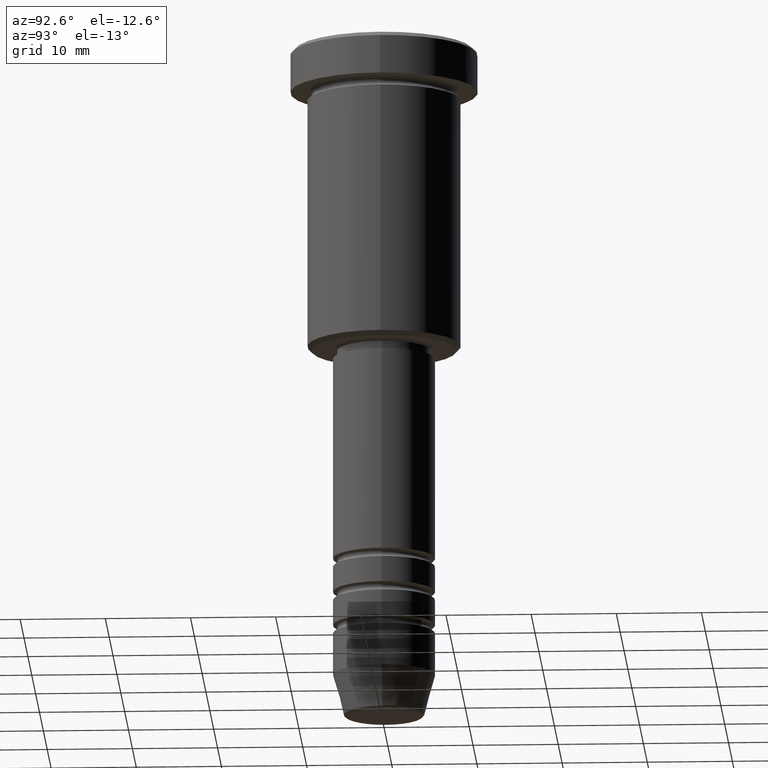
[diagram: clean part render]
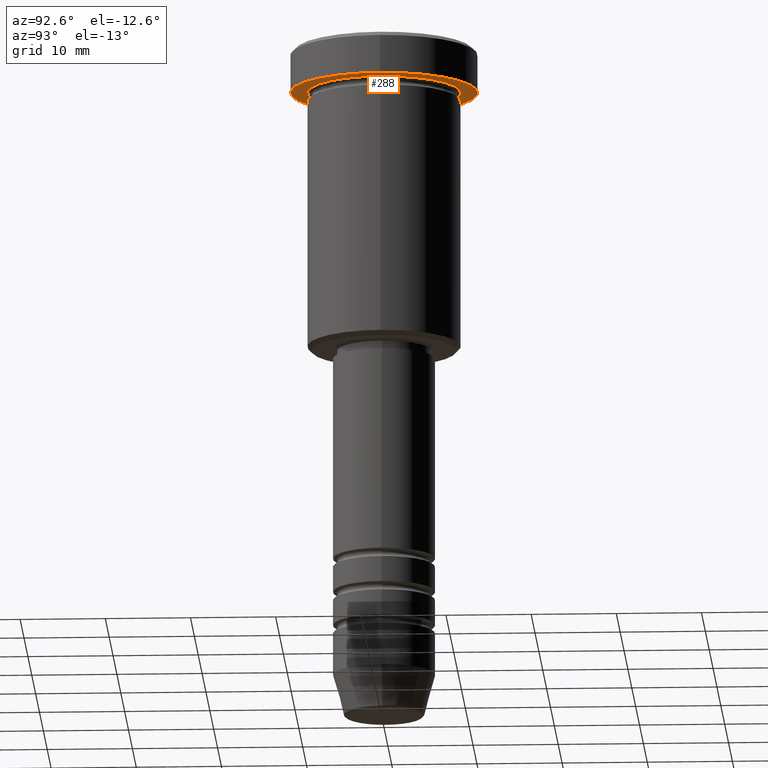
[diagram: same view with one face highlighted and labeled with its STEP entity id]
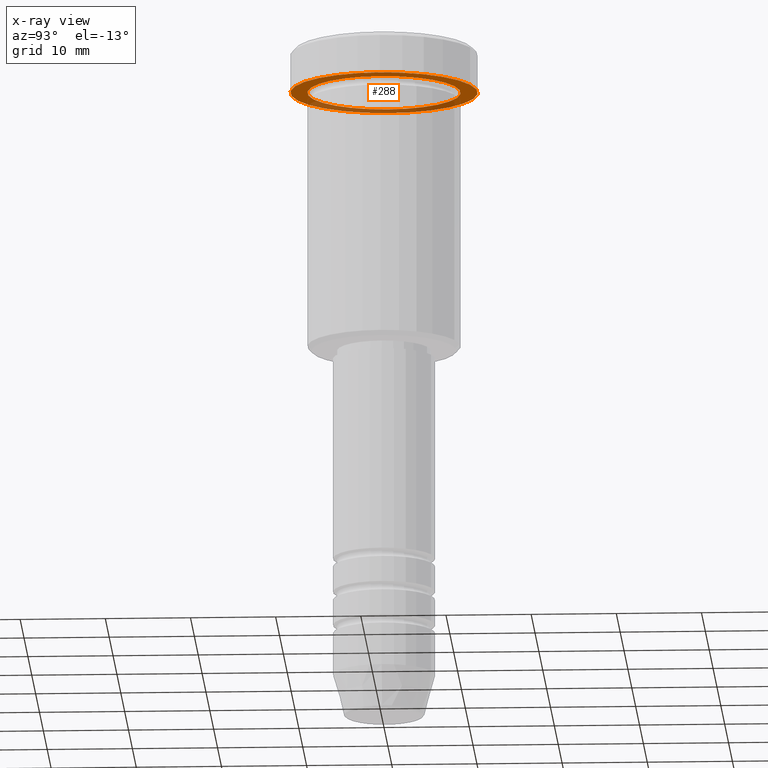
[diagram: x-ray of the same camera — body ghosted, the highlighted face saturated]
A machine part, auxiliary view. The second image highlights one B-rep face of the part: STEP entity #288.
The next image is the same camera in x-ray: the body ghosted, the highlighted face saturated — about 32% of this face is hidden behind the body in this view.
In plain terms, the highlighted planar face has unit normal (0, 0, -1).
Its self-contained STEP definition (entity closure, byte-faithful):
#152 = EDGE_LOOP ( 'NONE', ( #1056, #168 ) ) ;
#168 = ORIENTED_EDGE ( 'NONE', *, *, #1118, .T. ) ;
#218 = CARTESIAN_POINT ( 'NONE',  ( 9.000000000000000000, 1.102182119232617714E-15, -4.999999999999999112 ) ) ;
#238 = CARTESIAN_POINT ( 'NONE',  ( 0.000000000000000000, 11.00000000000000000, -5.000000000000000000 ) ) ;
#267 = CIRCLE ( 'NONE', #471, 9.000000000000000000 ) ;
#283 = CIRCLE ( 'NONE', #588, 9.000000000000000000 ) ;
#288 = ADVANCED_FACE ( 'NONE', ( #328, #321 ), #1048, .T. ) ;
#321 = FACE_OUTER_BOUND ( 'NONE', #976, .T. ) ;
#324 = AXIS2_PLACEMENT_3D ( 'NONE', #1142, #524, #423 ) ;
#328 = FACE_BOUND ( 'NONE', #152, .T. ) ;
#397 = CIRCLE ( 'NONE', #659, 11.00000000000000000 ) ;
#423 = DIRECTION ( 'NONE',  ( 1.000000000000000000, 0.000000000000000000, 0.000000000000000000 ) ) ;
#468 = AXIS2_PLACEMENT_3D ( 'NONE', #238, #493, #676 ) ;
#471 = AXIS2_PLACEMENT_3D ( 'NONE', #832, #743, #473 ) ;
#473 = DIRECTION ( 'NONE',  ( -1.000000000000000000, 0.000000000000000000, 0.000000000000000000 ) ) ;
#493 = DIRECTION ( 'NONE',  ( 0.000000000000000000, 0.000000000000000000, -1.000000000000000000 ) ) ;
#524 = DIRECTION ( 'NONE',  ( -0.000000000000000000, -0.000000000000000000, 1.000000000000000000 ) ) ;
#577 = EDGE_CURVE ( 'NONE', #939, #714, #267, .T. ) ;
#587 = EDGE_CURVE ( 'NONE', #739, #1014, #397, .T. ) ;
#588 = AXIS2_PLACEMENT_3D ( 'NONE', #729, #907, #912 ) ;
#625 = CIRCLE ( 'NONE', #324, 11.00000000000000000 ) ;
#659 = AXIS2_PLACEMENT_3D ( 'NONE', #1106, #804, #914 ) ;
#676 = DIRECTION ( 'NONE',  ( -1.000000000000000000, 0.000000000000000000, -0.000000000000000000 ) ) ;
#714 = VERTEX_POINT ( 'NONE', #218 ) ;
#729 = CARTESIAN_POINT ( 'NONE',  ( 0.000000000000000000, 0.000000000000000000, -5.000000000000000000 ) ) ;
#739 = VERTEX_POINT ( 'NONE', #1050 ) ;
#743 = DIRECTION ( 'NONE',  ( -0.000000000000000000, -0.000000000000000000, 1.000000000000000000 ) ) ;
#804 = DIRECTION ( 'NONE',  ( -0.000000000000000000, -0.000000000000000000, 1.000000000000000000 ) ) ;
#832 = CARTESIAN_POINT ( 'NONE',  ( 0.000000000000000000, 0.000000000000000000, -5.000000000000000000 ) ) ;
#865 = CARTESIAN_POINT ( 'NONE',  ( -9.000000000000000000, 0.000000000000000000, -4.999999999999999112 ) ) ;
#907 = DIRECTION ( 'NONE',  ( -0.000000000000000000, -0.000000000000000000, 1.000000000000000000 ) ) ;
#909 = EDGE_CURVE ( 'NONE', #1014, #739, #625, .T. ) ;
#912 = DIRECTION ( 'NONE',  ( -1.000000000000000000, 0.000000000000000000, 0.000000000000000000 ) ) ;
#914 = DIRECTION ( 'NONE',  ( 1.000000000000000000, 0.000000000000000000, 0.000000000000000000 ) ) ;
#919 = CARTESIAN_POINT ( 'NONE',  ( -11.00000000000000000, 1.347111479062088602E-15, -5.000000000000000000 ) ) ;
#920 = ORIENTED_EDGE ( 'NONE', *, *, #909, .F. ) ;
#939 = VERTEX_POINT ( 'NONE', #865 ) ;
#976 = EDGE_LOOP ( 'NONE', ( #1141, #920 ) ) ;
#1014 = VERTEX_POINT ( 'NONE', #919 ) ;
#1048 = PLANE ( 'NONE',  #468 ) ;
#1050 = CARTESIAN_POINT ( 'NONE',  ( 11.00000000000000000, 0.000000000000000000, -5.000000000000000000 ) ) ;
#1056 = ORIENTED_EDGE ( 'NONE', *, *, #577, .T. ) ;
#1106 = CARTESIAN_POINT ( 'NONE',  ( 0.000000000000000000, 0.000000000000000000, -5.000000000000000000 ) ) ;
#1118 = EDGE_CURVE ( 'NONE', #714, #939, #283, .T. ) ;
#1141 = ORIENTED_EDGE ( 'NONE', *, *, #587, .F. ) ;
#1142 = CARTESIAN_POINT ( 'NONE',  ( 0.000000000000000000, 0.000000000000000000, -5.000000000000000000 ) ) ;